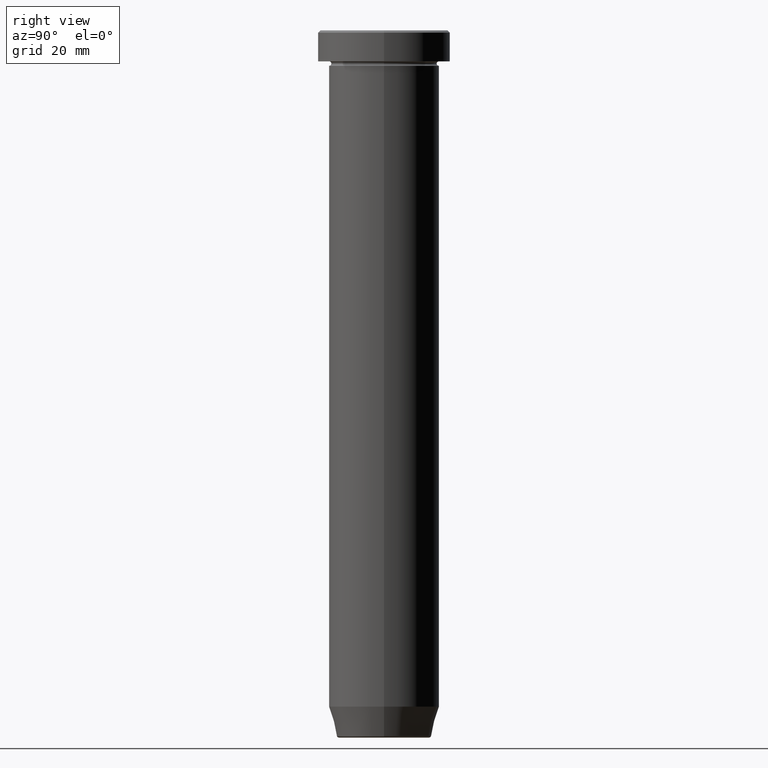
[diagram: clean part render]
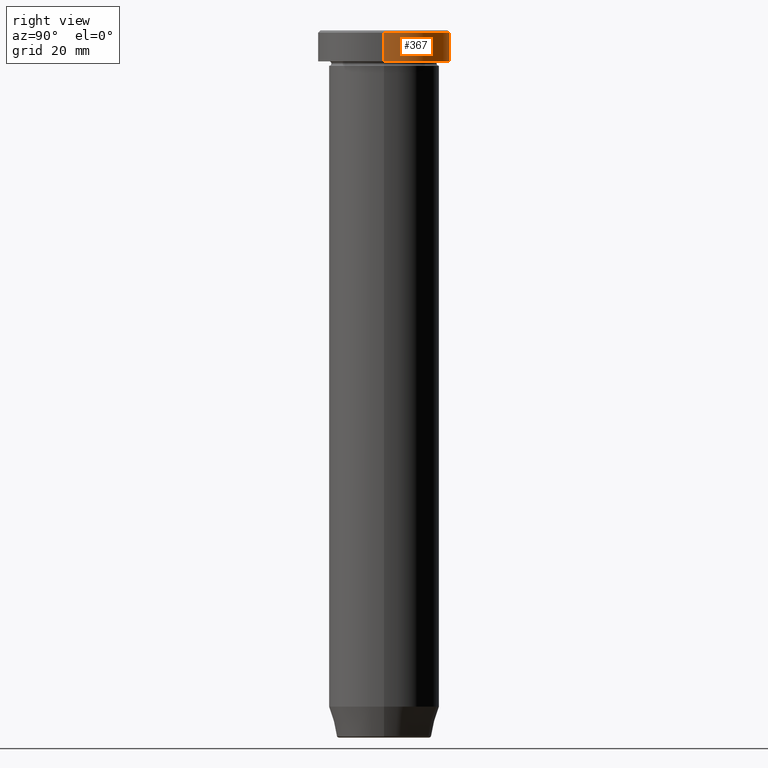
[diagram: same view with one face highlighted and labeled with its STEP entity id]
A machine part, right view. The second image highlights one B-rep face of the part: STEP entity #367.
In plain terms, the highlighted cylindrical surface (partial cylindrical patch) has radius 15 mm, axis along (-0, -0, 1).
Its self-contained STEP definition (entity closure, byte-faithful):
#7 = CARTESIAN_POINT ( 'NONE',  ( 15.00000000000000000, 0.000000000000000000, 0.000000000000000000 ) ) ;
#11 = CARTESIAN_POINT ( 'NONE',  ( -15.00000000000000000, 1.836970198721029589E-15, -6.999999999999999112 ) ) ;
#17 = CARTESIAN_POINT ( 'NONE',  ( 0.000000000000000000, 0.000000000000000000, 0.000000000000000000 ) ) ;
#51 = CYLINDRICAL_SURFACE ( 'NONE', #316, 15.00000000000000000 ) ;
#60 = VECTOR ( 'NONE', #457, 1000.000000000000000 ) ;
#95 = VERTEX_POINT ( 'NONE', #503 ) ;
#101 = DIRECTION ( 'NONE',  ( 1.000000000000000000, 0.000000000000000000, 0.000000000000000000 ) ) ;
#161 = CIRCLE ( 'NONE', #483, 15.00000000000000000 ) ;
#185 = VERTEX_POINT ( 'NONE', #585 ) ;
#188 = ORIENTED_EDGE ( 'NONE', *, *, #252, .T. ) ;
#228 = VECTOR ( 'NONE', #342, 1000.000000000000000 ) ;
#232 = ORIENTED_EDGE ( 'NONE', *, *, #564, .T. ) ;
#235 = CARTESIAN_POINT ( 'NONE',  ( 15.00000000000000000, 0.000000000000000000, -6.999999999999999112 ) ) ;
#252 = EDGE_CURVE ( 'NONE', #413, #95, #270, .T. ) ;
#270 = LINE ( 'NONE', #381, #60 ) ;
#283 = VERTEX_POINT ( 'NONE', #235 ) ;
#290 = FACE_OUTER_BOUND ( 'NONE', #376, .T. ) ;
#316 = AXIS2_PLACEMENT_3D ( 'NONE', #17, #485, #386 ) ;
#335 = CARTESIAN_POINT ( 'NONE',  ( 0.000000000000000000, 0.000000000000000000, -6.999999999999999112 ) ) ;
#342 = DIRECTION ( 'NONE',  ( -0.000000000000000000, -0.000000000000000000, 1.000000000000000000 ) ) ;
#345 = LINE ( 'NONE', #7, #228 ) ;
#352 = DIRECTION ( 'NONE',  ( 0.000000000000000000, 0.000000000000000000, -1.000000000000000000 ) ) ;
#367 = ADVANCED_FACE ( 'NONE', ( #290 ), #51, .T. ) ;
#376 = EDGE_LOOP ( 'NONE', ( #521, #188, #232, #490 ) ) ;
#381 = CARTESIAN_POINT ( 'NONE',  ( -15.00000000000000000, 1.836970198721029589E-15, 0.000000000000000000 ) ) ;
#386 = DIRECTION ( 'NONE',  ( 1.000000000000000000, 0.000000000000000000, 0.000000000000000000 ) ) ;
#400 = DIRECTION ( 'NONE',  ( 1.000000000000000000, 0.000000000000000000, 0.000000000000000000 ) ) ;
#413 = VERTEX_POINT ( 'NONE', #11 ) ;
#420 = EDGE_CURVE ( 'NONE', #283, #185, #345, .T. ) ;
#452 = CIRCLE ( 'NONE', #493, 15.00000000000000000 ) ;
#457 = DIRECTION ( 'NONE',  ( -0.000000000000000000, -0.000000000000000000, 1.000000000000000000 ) ) ;
#483 = AXIS2_PLACEMENT_3D ( 'NONE', #335, #519, #101 ) ;
#485 = DIRECTION ( 'NONE',  ( -0.000000000000000000, -0.000000000000000000, 1.000000000000000000 ) ) ;
#490 = ORIENTED_EDGE ( 'NONE', *, *, #420, .F. ) ;
#493 = AXIS2_PLACEMENT_3D ( 'NONE', #498, #352, #400 ) ;
#498 = CARTESIAN_POINT ( 'NONE',  ( 0.000000000000000000, 0.000000000000000000, -0.5000000000000039968 ) ) ;
#503 = CARTESIAN_POINT ( 'NONE',  ( -15.00000000000000000, 1.836970198721029589E-15, -0.5000000000000039968 ) ) ;
#516 = EDGE_CURVE ( 'NONE', #283, #413, #161, .T. ) ;
#519 = DIRECTION ( 'NONE',  ( -0.000000000000000000, -0.000000000000000000, 1.000000000000000000 ) ) ;
#521 = ORIENTED_EDGE ( 'NONE', *, *, #516, .T. ) ;
#564 = EDGE_CURVE ( 'NONE', #95, #185, #452, .T. ) ;
#585 = CARTESIAN_POINT ( 'NONE',  ( 15.00000000000000000, 0.000000000000000000, -0.5000000000000039968 ) ) ;